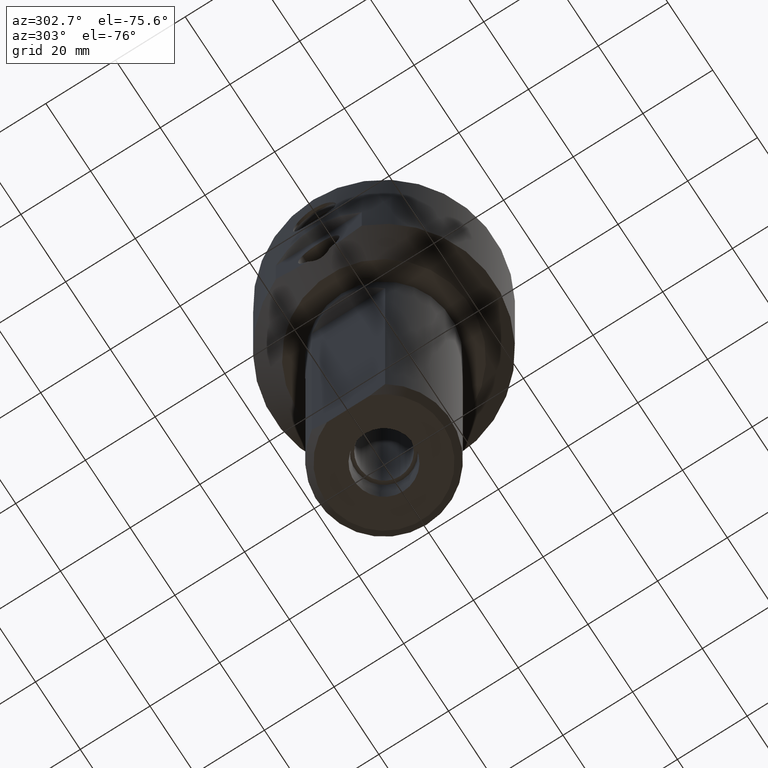
[diagram: clean part render]
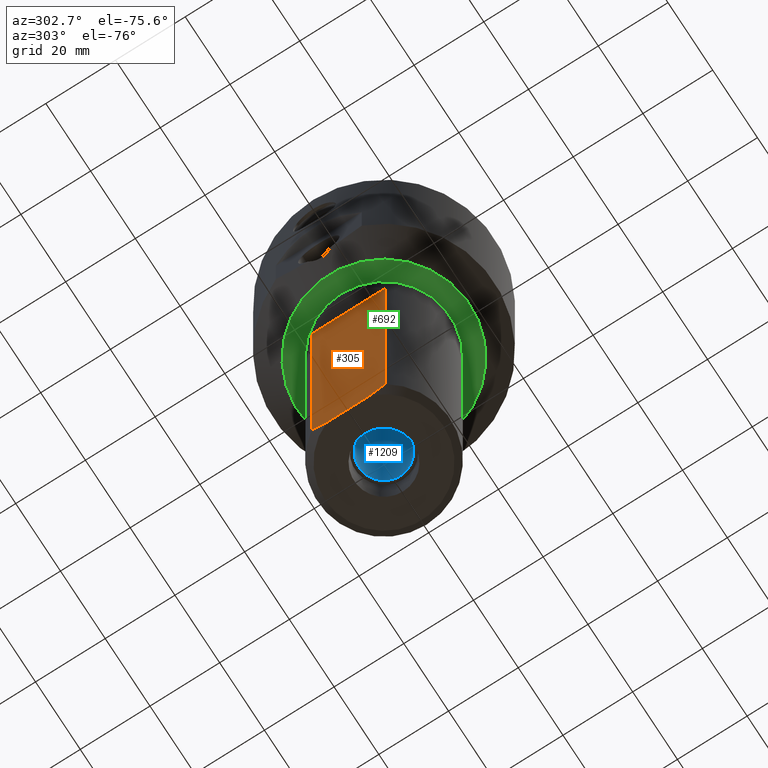
[diagram: same view with three faces highlighted in distinct colors, each labeled with its STEP entity id]
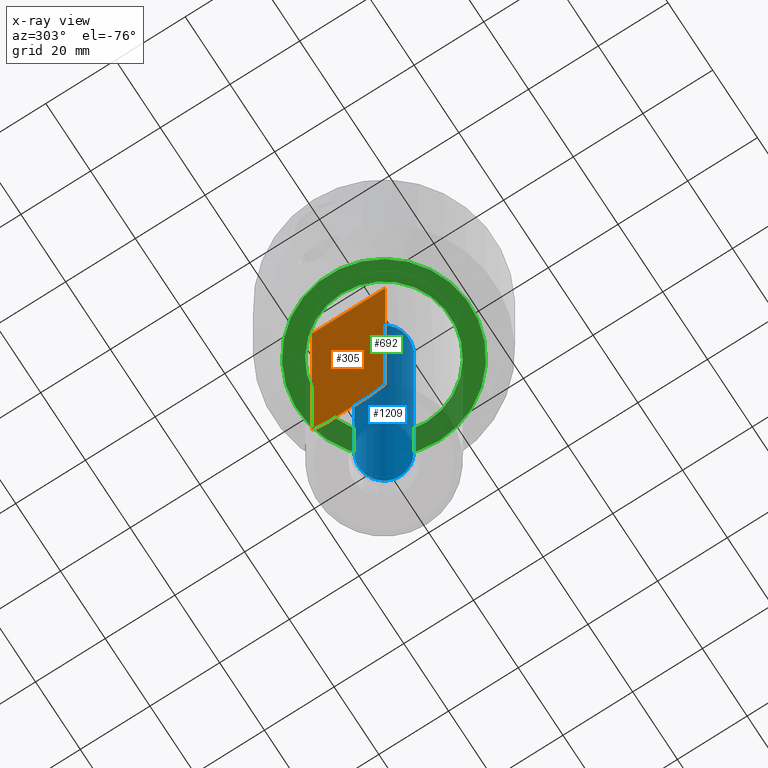
[diagram: x-ray of the same camera — body ghosted, the three highlighted faces saturated]
A machine part, auxiliary view with three faces highlighted in distinct colors.
The next image is the same camera in x-ray (body ghosted, the three faces saturated) — at least one of them is partly hidden behind the body in this view.
Their STEP definitions:

[orange] entity #305 — the highlighted planar face has unit normal (1, 0, -0).
#7 = B_SPLINE_CURVE_WITH_KNOTS ( 'NONE', 3,
 ( #1327, #565, #918, #1041 ),
 .UNSPECIFIED., .F., .F.,
 ( 4, 4 ),
 ( 0.05392153305141325625, 0.05871094019486747945 ),
 .UNSPECIFIED. ) ;
#9 = ORIENTED_EDGE ( 'NONE', *, *, #1449, .F. ) ;
#56 = EDGE_CURVE ( 'NONE', #868, #871, #504, .T. ) ;
#71 = VECTOR ( 'NONE', #1251, 1000.000000000000000 ) ;
#73 = EDGE_CURVE ( 'NONE', #868, #1572, #111, .T. ) ;
#77 = CARTESIAN_POINT ( 'NONE',  ( -15.87500000000000355, -10.52123566887464001, -152.3999999999999773 ) ) ;
#78 = CARTESIAN_POINT ( 'NONE',  ( -15.87500000000000355, 10.52123566887464001, -150.3999999999999773 ) ) ;
#103 = DIRECTION ( 'NONE',  ( -0.0000000000000000000, 1.000000000000000000, -0.0000000000000000000 ) ) ;
#106 = CARTESIAN_POINT ( 'NONE',  ( -15.87499999999998934, -10.52123566887466843, -57.39999999999997726 ) ) ;
#111 = B_SPLINE_CURVE_WITH_KNOTS ( 'NONE', 3,
 ( #121, #788, #1291, #129 ),
 .UNSPECIFIED., .F., .F.,
 ( 4, 4 ),
 ( 0.03645877297976964776, 0.04122276291044249530 ),
 .UNSPECIFIED. ) ;
#121 = CARTESIAN_POINT ( 'NONE',  ( -15.87500000000000355, 10.52123566887464001, -150.3999999999999773 ) ) ;
#129 = CARTESIAN_POINT ( 'NONE',  ( -15.87500000000000355, 6.206158231949932436, -152.3999999999999773 ) ) ;
#254 = VERTEX_POINT ( 'NONE', #106 ) ;
#305 = ADVANCED_FACE ( 'NONE', ( #1463 ), #1600, .F. ) ;
#333 = VERTEX_POINT ( 'NONE', #1598 ) ;
#350 = VECTOR ( 'NONE', #103, 1000.000000000000000 ) ;
#392 = LINE ( 'NONE', #1564, #1325 ) ;
#442 = VERTEX_POINT ( 'NONE', #1543 ) ;
#476 = CARTESIAN_POINT ( 'NONE',  ( -15.87500000000000355, -31.63500000000000512, -152.3999999999999773 ) ) ;
#484 = ORIENTED_EDGE ( 'NONE', *, *, #56, .F. ) ;
#492 = EDGE_CURVE ( 'NONE', #442, #333, #7, .T. ) ;
#499 = EDGE_LOOP ( 'NONE', ( #748, #618, #1179, #9, #1236, #484 ) ) ;
#504 = LINE ( 'NONE', #1650, #802 ) ;
#554 = CARTESIAN_POINT ( 'NONE',  ( -15.87500000000000355, 6.206158231949932436, -152.3999999999999773 ) ) ;
#565 = CARTESIAN_POINT ( 'NONE',  ( -15.87500000000000355, -7.712399434609443993, -151.8515710625293593 ) ) ;
#604 = DIRECTION ( 'NONE',  ( 1.000000000000000000, 0.0000000000000000000, -1.460819769243627131E-16 ) ) ;
#618 = ORIENTED_EDGE ( 'NONE', *, *, #733, .F. ) ;
#706 = DIRECTION ( 'NONE',  ( -0.0000000000000000000, 1.000000000000000000, -0.0000000000000000000 ) ) ;
#733 = EDGE_CURVE ( 'NONE', #442, #1572, #392, .T. ) ;
#748 = ORIENTED_EDGE ( 'NONE', *, *, #73, .T. ) ;
#776 = DIRECTION ( 'NONE',  ( -0.0000000000000000000, -0.0000000000000000000, 1.000000000000000000 ) ) ;
#779 = DIRECTION ( 'NONE',  ( -1.460819769243627131E-16, 0.0000000000000000000, -1.000000000000000000 ) ) ;
#788 = CARTESIAN_POINT ( 'NONE',  ( -15.87500000000000355, 9.131677948429608449, -151.1676484249044847 ) ) ;
#802 = VECTOR ( 'NONE', #776, 1000.000000000000000 ) ;
#868 = VERTEX_POINT ( 'NONE', #78 ) ;
#871 = VERTEX_POINT ( 'NONE', #1253 ) ;
#887 = CARTESIAN_POINT ( 'NONE',  ( -15.87499999999998934, -31.63500000000000512, -57.39999999999997726 ) ) ;
#918 = CARTESIAN_POINT ( 'NONE',  ( -15.87500000000000355, -9.138642696581728231, -151.1638008136320934 ) ) ;
#1041 = CARTESIAN_POINT ( 'NONE',  ( -15.87500000000000355, -10.52123566887464001, -150.3999999999999773 ) ) ;
#1043 = EDGE_CURVE ( 'NONE', #254, #871, #1577, .T. ) ;
#1179 = ORIENTED_EDGE ( 'NONE', *, *, #492, .T. ) ;
#1236 = ORIENTED_EDGE ( 'NONE', *, *, #1043, .T. ) ;
#1251 = DIRECTION ( 'NONE',  ( 0.0000000000000000000, 0.0000000000000000000, -1.000000000000000000 ) ) ;
#1253 = CARTESIAN_POINT ( 'NONE',  ( -15.87499999999998934, 10.52123566887466843, -57.39999999999997726 ) ) ;
#1291 = CARTESIAN_POINT ( 'NONE',  ( -15.87500000000000355, 7.703265332855991687, -151.8548968284893590 ) ) ;
#1323 = LINE ( 'NONE', #77, #71 ) ;
#1325 = VECTOR ( 'NONE', #706, 1000.000000000000000 ) ;
#1327 = CARTESIAN_POINT ( 'NONE',  ( -15.87500000000000355, -6.206158231949933324, -152.3999999999999773 ) ) ;
#1449 = EDGE_CURVE ( 'NONE', #254, #333, #1323, .T. ) ;
#1463 = FACE_OUTER_BOUND ( 'NONE', #499, .T. ) ;
#1543 = CARTESIAN_POINT ( 'NONE',  ( -15.87500000000000355, -6.206158231949933324, -152.3999999999999773 ) ) ;
#1564 = CARTESIAN_POINT ( 'NONE',  ( -15.87500000000000355, -31.63500000000000512, -152.3999999999999773 ) ) ;
#1572 = VERTEX_POINT ( 'NONE', #554 ) ;
#1577 = LINE ( 'NONE', #887, #350 ) ;
#1598 = CARTESIAN_POINT ( 'NONE',  ( -15.87500000000000355, -10.52123566887464001, -150.3999999999999773 ) ) ;
#1600 = PLANE ( 'NONE',  #1613 ) ;
#1613 = AXIS2_PLACEMENT_3D ( 'NONE', #476, #604, #779 ) ;
#1650 = CARTESIAN_POINT ( 'NONE',  ( -15.87500000000000355, 10.52123566887464001, -152.3999999999999773 ) ) ;

[blue] entity #1209 — the highlighted cylindrical surface (bore or boss wall) has radius 7.2 mm, axis along (-0, -0, 1).
#113 = CIRCLE ( 'NONE', #1494, 7.200000000000000178 ) ;
#146 = EDGE_CURVE ( 'NONE', #1049, #1049, #1539, .T. ) ;
#147 = DIRECTION ( 'NONE',  ( -0.0000000000000000000, -0.0000000000000000000, -1.000000000000000000 ) ) ;
#387 = CARTESIAN_POINT ( 'NONE',  ( 7.200000000000000178, 0.0000000000000000000, -47.21214541458545710 ) ) ;
#452 = DIRECTION ( 'NONE',  ( 1.000000000000000000, 0.0000000000000000000, 0.0000000000000000000 ) ) ;
#558 = ORIENTED_EDGE ( 'NONE', *, *, #146, .F. ) ;
#715 = DIRECTION ( 'NONE',  ( -0.0000000000000000000, -0.0000000000000000000, -1.000000000000000000 ) ) ;
#725 = CYLINDRICAL_SURFACE ( 'NONE', #1128, 7.200000000000000178 ) ;
#746 = AXIS2_PLACEMENT_3D ( 'NONE', #1352, #715, #452 ) ;
#922 = CARTESIAN_POINT ( 'NONE',  ( 0.0000000000000000000, 0.0000000000000000000, -142.0698199999999929 ) ) ;
#934 = FACE_OUTER_BOUND ( 'NONE', #1220, .T. ) ;
#1046 = DIRECTION ( 'NONE',  ( 1.000000000000000000, 0.0000000000000000000, 0.0000000000000000000 ) ) ;
#1049 = VERTEX_POINT ( 'NONE', #387 ) ;
#1052 = DIRECTION ( 'NONE',  ( 1.000000000000000000, 0.0000000000000000000, 0.0000000000000000000 ) ) ;
#1128 = AXIS2_PLACEMENT_3D ( 'NONE', #1292, #1309, #1046 ) ;
#1209 = ADVANCED_FACE ( 'NONE', ( #934, #1666 ), #725, .F. ) ;
#1220 = EDGE_LOOP ( 'NONE', ( #1395 ) ) ;
#1292 = CARTESIAN_POINT ( 'NONE',  ( 0.0000000000000000000, 0.0000000000000000000, -152.3999999999999773 ) ) ;
#1309 = DIRECTION ( 'NONE',  ( -0.0000000000000000000, -0.0000000000000000000, 1.000000000000000000 ) ) ;
#1352 = CARTESIAN_POINT ( 'NONE',  ( 0.0000000000000000000, 0.0000000000000000000, -47.21214541458545710 ) ) ;
#1395 = ORIENTED_EDGE ( 'NONE', *, *, #1560, .T. ) ;
#1417 = EDGE_LOOP ( 'NONE', ( #558 ) ) ;
#1494 = AXIS2_PLACEMENT_3D ( 'NONE', #922, #147, #1052 ) ;
#1539 = CIRCLE ( 'NONE', #746, 7.200000000000000178 ) ;
#1560 = EDGE_CURVE ( 'NONE', #1632, #1632, #113, .T. ) ;
#1594 = CARTESIAN_POINT ( 'NONE',  ( 7.200000000000000178, 0.0000000000000000000, -142.0698199999999929 ) ) ;
#1632 = VERTEX_POINT ( 'NONE', #1594 ) ;
#1666 = FACE_OUTER_BOUND ( 'NONE', #1417, .T. ) ;

[green] entity #692 — the highlighted planar face has unit normal (0, 0, 1).
#21 = EDGE_CURVE ( 'NONE', #1235, #1235, #272, .T. ) ;
#85 = PLANE ( 'NONE',  #651 ) ;
#218 = CARTESIAN_POINT ( 'NONE',  ( 0.0000000000000000000, 0.0000000000000000000, -50.79999999999999716 ) ) ;
#225 = DIRECTION ( 'NONE',  ( 1.000000000000000000, 0.0000000000000000000, -0.0000000000000000000 ) ) ;
#229 = DIRECTION ( 'NONE',  ( 1.000000000000000000, 0.0000000000000000000, 0.0000000000000000000 ) ) ;
#272 = CIRCLE ( 'NONE', #717, 19.04500000000000171 ) ;
#358 = DIRECTION ( 'NONE',  ( 0.0000000000000000000, 0.0000000000000000000, 1.000000000000000000 ) ) ;
#379 = CARTESIAN_POINT ( 'NONE',  ( 0.0000000000000000000, 0.0000000000000000000, -50.79999999999999716 ) ) ;
#402 = CARTESIAN_POINT ( 'NONE',  ( 24.63499999999998380, 0.0000000000000000000, -50.79999999999999716 ) ) ;
#513 = EDGE_LOOP ( 'NONE', ( #1511 ) ) ;
#547 = CARTESIAN_POINT ( 'NONE',  ( 0.0000000000000000000, 0.0000000000000000000, -50.79999999999999716 ) ) ;
#651 = AXIS2_PLACEMENT_3D ( 'NONE', #547, #358, #225 ) ;
#692 = ADVANCED_FACE ( 'NONE', ( #1079, #1221 ), #85, .F. ) ;
#717 = AXIS2_PLACEMENT_3D ( 'NONE', #218, #1644, #229 ) ;
#741 = EDGE_LOOP ( 'NONE', ( #1364 ) ) ;
#886 = AXIS2_PLACEMENT_3D ( 'NONE', #379, #1265, #892 ) ;
#892 = DIRECTION ( 'NONE',  ( 1.000000000000000000, 0.0000000000000000000, 0.0000000000000000000 ) ) ;
#914 = CIRCLE ( 'NONE', #886, 24.63499999999998380 ) ;
#997 = EDGE_CURVE ( 'NONE', #1009, #1009, #914, .T. ) ;
#1009 = VERTEX_POINT ( 'NONE', #402 ) ;
#1079 = FACE_OUTER_BOUND ( 'NONE', #741, .T. ) ;
#1221 = FACE_BOUND ( 'NONE', #513, .T. ) ;
#1235 = VERTEX_POINT ( 'NONE', #1415 ) ;
#1265 = DIRECTION ( 'NONE',  ( -0.0000000000000000000, -0.0000000000000000000, -1.000000000000000000 ) ) ;
#1364 = ORIENTED_EDGE ( 'NONE', *, *, #997, .T. ) ;
#1415 = CARTESIAN_POINT ( 'NONE',  ( 19.04500000000000171, 0.0000000000000000000, -50.79999999999999716 ) ) ;
#1511 = ORIENTED_EDGE ( 'NONE', *, *, #21, .F. ) ;
#1644 = DIRECTION ( 'NONE',  ( -0.0000000000000000000, -0.0000000000000000000, -1.000000000000000000 ) ) ;